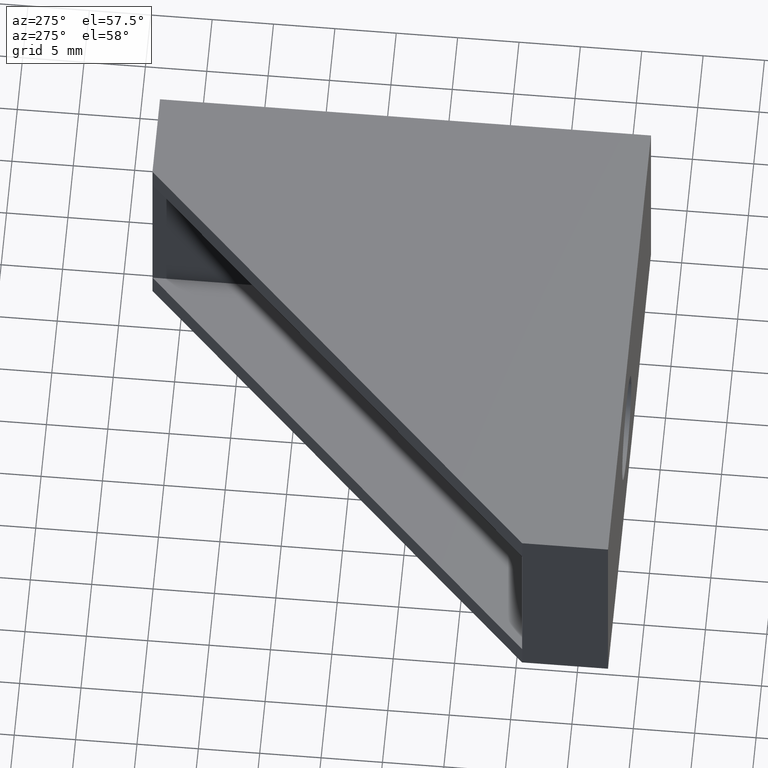
[diagram: clean part render]
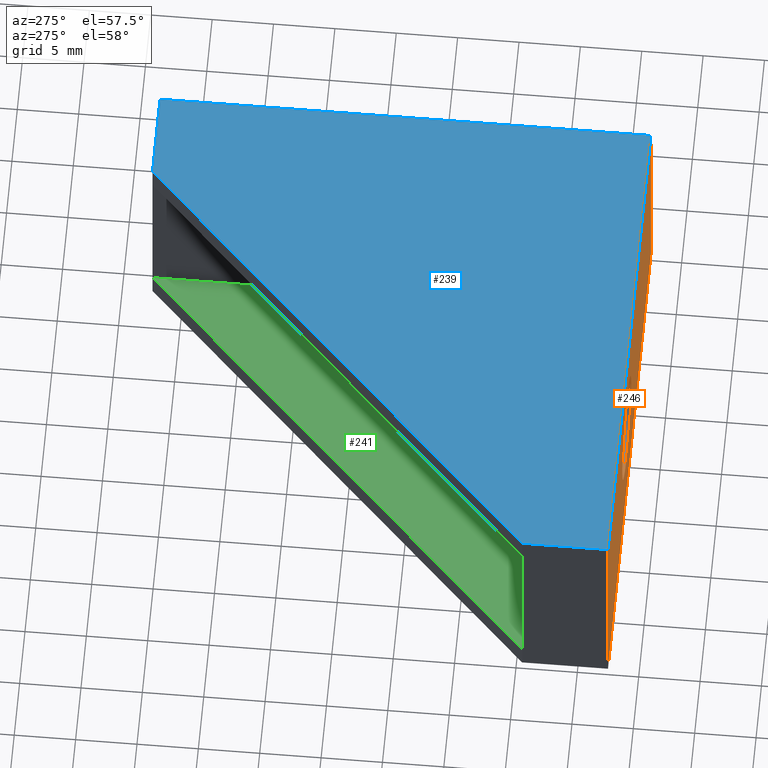
[diagram: same view with three faces highlighted in distinct colors, each labeled with its STEP entity id]
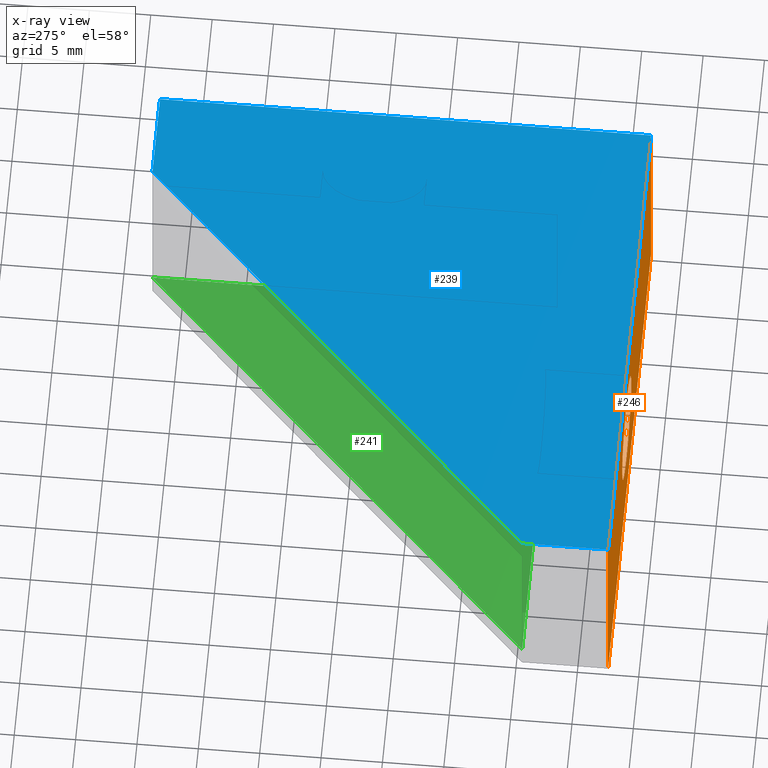
[diagram: x-ray of the same camera — body ghosted, the three highlighted faces saturated]
A machine part, auxiliary view with three faces highlighted in distinct colors.
The next image is the same camera in x-ray (body ghosted, the three faces saturated) — at least one of them is partly hidden behind the body in this view.
Their STEP definitions:

[orange] entity #246 — the highlighted planar face has unit normal (0, -1, 0).
#20=FACE_BOUND('',#56,.T.);
#26=CIRCLE('',#266,4.25);
#38=FACE_OUTER_BOUND('',#55,.T.);
#55=EDGE_LOOP('',(#214,#215,#216,#217));
#56=EDGE_LOOP('',(#218));
#73=LINE('',#365,#99);
#83=LINE('',#384,#109);
#84=LINE('',#386,#110);
#86=LINE('',#392,#112);
#99=VECTOR('',#297,39.9999999998399);
#109=VECTOR('',#313,39.9999999998399);
#110=VECTOR('',#316,18.);
#112=VECTOR('',#324,18.);
#123=VERTEX_POINT('',#362);
#124=VERTEX_POINT('',#364);
#128=VERTEX_POINT('',#378);
#130=VERTEX_POINT('',#382);
#132=VERTEX_POINT('',#394);
#147=EDGE_CURVE('',#123,#124,#73,.T.);
#157=EDGE_CURVE('',#128,#130,#83,.T.);
#158=EDGE_CURVE('',#130,#124,#84,.T.);
#161=EDGE_CURVE('',#128,#123,#86,.T.);
#162=EDGE_CURVE('',#132,#132,#26,.T.);
#214=ORIENTED_EDGE('',*,*,#157,.T.);
#215=ORIENTED_EDGE('',*,*,#158,.T.);
#216=ORIENTED_EDGE('',*,*,#147,.F.);
#217=ORIENTED_EDGE('',*,*,#161,.F.);
#218=ORIENTED_EDGE('',*,*,#162,.T.);
#234=PLANE('',#265);
#246=ADVANCED_FACE('',(#38,#20),#234,.T.);
#265=AXIS2_PLACEMENT_3D('',#393,#325,#326);
#266=AXIS2_PLACEMENT_3D('',#395,#327,#328);
#297=DIRECTION('',(1.,0.,0.));
#313=DIRECTION('',(1.,0.,0.));
#316=DIRECTION('',(0.,0.,1.));
#324=DIRECTION('',(0.,0.,1.));
#325=DIRECTION('center_axis',(0.,-1.,0.));
#326=DIRECTION('ref_axis',(0.,0.,-1.));
#327=DIRECTION('center_axis',(0.,1.,0.));
#328=DIRECTION('ref_axis',(-1.,0.,0.));
#362=CARTESIAN_POINT('',(-39.9999999998399,-22.49999999991,9.00000000003593));
#364=CARTESIAN_POINT('',(0.,-22.49999999991,9.00000000003593));
#365=CARTESIAN_POINT('',(-39.9999999998399,-22.49999999991,9.00000000003593));
#378=CARTESIAN_POINT('',(-39.9999999998399,-22.49999999991,-8.99999999996408));
#382=CARTESIAN_POINT('',(0.,-22.49999999991,-8.99999999996408));
#384=CARTESIAN_POINT('',(-39.9999999998399,-22.49999999991,-8.99999999996408));
#386=CARTESIAN_POINT('',(0.,-22.49999999991,-8.99999999996408));
#392=CARTESIAN_POINT('',(-39.9999999998399,-22.49999999991,-8.99999999996408));
#393=CARTESIAN_POINT('Origin',(-40.0000433069272,-22.49999999991,-9.00004330705133));
#394=CARTESIAN_POINT('',(-18.2499999999268,-22.49999999991,3.592504E-11));
#395=CARTESIAN_POINT('Origin',(-22.4999999999268,-22.49999999991,3.592504E-11));

[blue] entity #239 — the highlighted planar face has unit normal (0, 0, 1).
#31=FACE_OUTER_BOUND('',#47,.T.);
#47=EDGE_LOOP('',(#180,#181,#182,#183,#184));
#68=LINE('',#356,#94);
#72=LINE('',#363,#98);
#73=LINE('',#365,#99);
#74=LINE('',#367,#100);
#75=LINE('',#368,#101);
#94=VECTOR('',#288,46.6690475581256);
#98=VECTOR('',#296,6.99999999997181);
#99=VECTOR('',#297,39.9999999998399);
#100=VECTOR('',#298,39.9999999998399);
#101=VECTOR('',#299,6.99999999997181);
#121=VERTEX_POINT('',#354);
#122=VERTEX_POINT('',#355);
#123=VERTEX_POINT('',#362);
#124=VERTEX_POINT('',#364);
#125=VERTEX_POINT('',#366);
#142=EDGE_CURVE('',#121,#122,#68,.T.);
#146=EDGE_CURVE('',#122,#123,#72,.T.);
#147=EDGE_CURVE('',#123,#124,#73,.T.);
#148=EDGE_CURVE('',#124,#125,#74,.T.);
#149=EDGE_CURVE('',#125,#121,#75,.T.);
#180=ORIENTED_EDGE('',*,*,#142,.T.);
#181=ORIENTED_EDGE('',*,*,#146,.T.);
#182=ORIENTED_EDGE('',*,*,#147,.T.);
#183=ORIENTED_EDGE('',*,*,#148,.T.);
#184=ORIENTED_EDGE('',*,*,#149,.T.);
#227=PLANE('',#257);
#239=ADVANCED_FACE('',(#31),#227,.T.);
#257=AXIS2_PLACEMENT_3D('',#361,#294,#295);
#288=DIRECTION('',(-0.707106781186548,-0.707106781186548,0.));
#294=DIRECTION('center_axis',(0.,0.,1.));
#295=DIRECTION('ref_axis',(1.,0.,0.));
#296=DIRECTION('',(0.,-1.,0.));
#297=DIRECTION('',(1.,0.,0.));
#298=DIRECTION('',(0.,1.,0.));
#299=DIRECTION('',(-1.,0.,0.));
#354=CARTESIAN_POINT('',(-6.99999999997181,17.49999999993,9.00000000003593));
#355=CARTESIAN_POINT('',(-39.9999999998399,-15.4999999999382,9.00000000003593));
#356=CARTESIAN_POINT('',(-6.99999999997181,17.49999999993,9.00000000003593));
#361=CARTESIAN_POINT('Origin',(-40.0000433069272,-22.5000433069972,9.00000000003593));
#362=CARTESIAN_POINT('',(-39.9999999998399,-22.49999999991,9.00000000003593));
#363=CARTESIAN_POINT('',(-39.9999999998399,-15.4999999999382,9.00000000003593));
#364=CARTESIAN_POINT('',(0.,-22.49999999991,9.00000000003593));
#365=CARTESIAN_POINT('',(-39.9999999998399,-22.49999999991,9.00000000003593));
#366=CARTESIAN_POINT('',(0.,17.49999999993,9.00000000003593));
#367=CARTESIAN_POINT('',(0.,-22.49999999991,9.00000000003593));
#368=CARTESIAN_POINT('',(0.,17.49999999993,9.00000000003593));

[green] entity #241 — the highlighted planar face has unit normal (0, 0, -1).
#33=FACE_OUTER_BOUND('',#49,.T.);
#49=EDGE_LOOP('',(#189,#190,#191));
#61=LINE('',#337,#87);
#66=LINE('',#349,#92);
#77=LINE('',#372,#103);
#87=VECTOR('',#273,32.9999999998681);
#92=VECTOR('',#282,32.9999999998681);
#103=VECTOR('',#303,46.6690475581256);
#113=VERTEX_POINT('',#335);
#114=VERTEX_POINT('',#336);
#119=VERTEX_POINT('',#348);
#133=EDGE_CURVE('',#113,#114,#61,.T.);
#139=EDGE_CURVE('',#119,#114,#66,.T.);
#151=EDGE_CURVE('',#119,#113,#77,.T.);
#189=ORIENTED_EDGE('',*,*,#139,.T.);
#190=ORIENTED_EDGE('',*,*,#133,.F.);
#191=ORIENTED_EDGE('',*,*,#151,.F.);
#229=PLANE('',#259);
#241=ADVANCED_FACE('',(#33),#229,.F.);
#259=AXIS2_PLACEMENT_3D('',#376,#306,#307);
#273=DIRECTION('',(0.,-1.,0.));
#282=DIRECTION('',(1.,0.,0.));
#303=DIRECTION('',(0.707106781186548,0.707106781186548,0.));
#306=DIRECTION('center_axis',(0.,0.,-1.));
#307=DIRECTION('ref_axis',(-1.,0.,0.));
#335=CARTESIAN_POINT('',(-6.99999999997181,17.49999999993,-6.99999999996408));
#336=CARTESIAN_POINT('',(-6.99999999997181,-15.4999999999382,-6.99999999996408));
#337=CARTESIAN_POINT('',(-6.99999999997181,17.49999999993,-6.99999999996408));
#348=CARTESIAN_POINT('',(-39.9999999998399,-15.4999999999382,-6.99999999996408));
#349=CARTESIAN_POINT('',(-39.9999999998399,-15.4999999999382,-6.99999999996408));
#372=CARTESIAN_POINT('',(-39.9999999998399,-15.4999999999382,-6.99999999996408));
#376=CARTESIAN_POINT('Origin',(-44.0000047242893,21.5000047243793,-6.99999999996408));